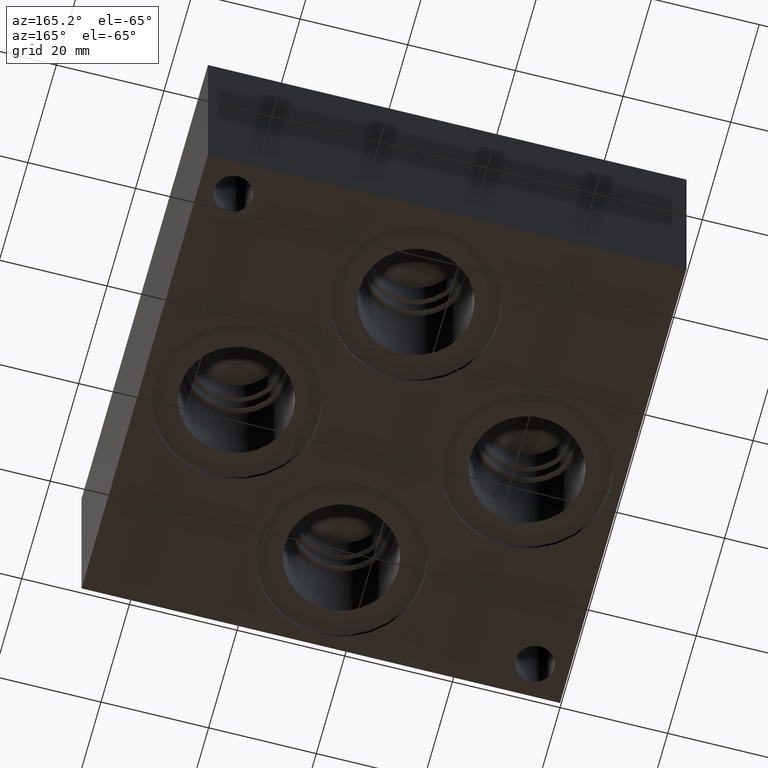
[diagram: clean part render]
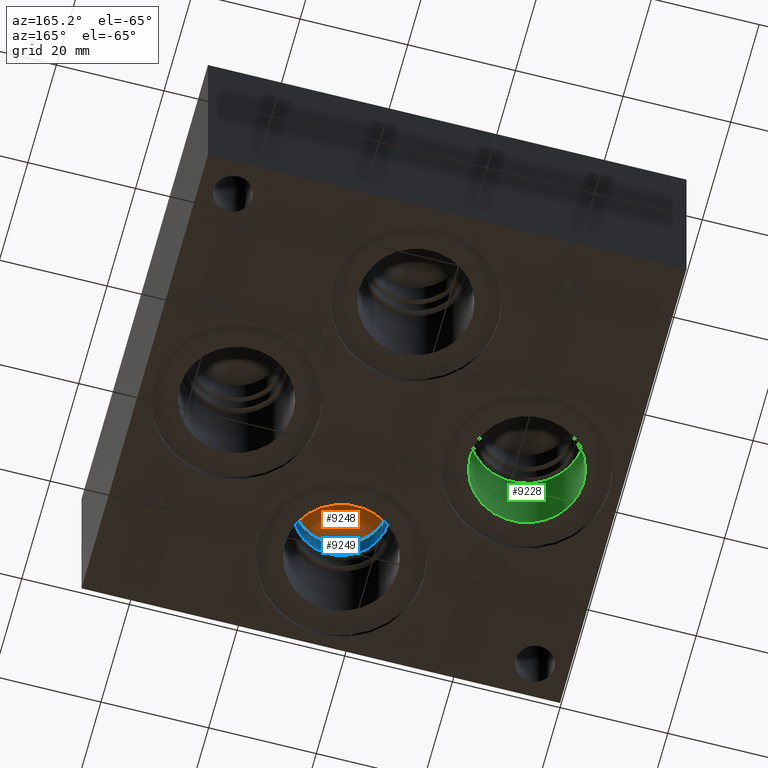
[diagram: same view with three faces highlighted in distinct colors, each labeled with its STEP entity id]
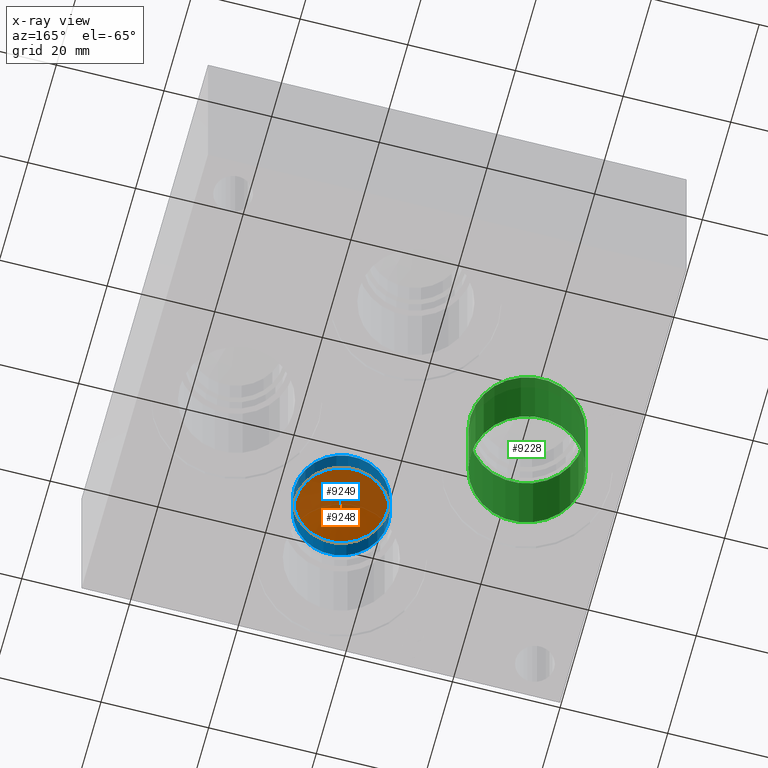
[diagram: x-ray of the same camera — body ghosted, the three highlighted faces saturated]
A machine part, auxiliary view with three faces highlighted in distinct colors.
The next image is the same camera in x-ray (body ghosted, the three faces saturated) — at least one of them is partly hidden behind the body in this view.
Their STEP definitions:

[orange] entity #9248 — the highlighted conical surface has half-angle 60 deg.
#19=CONICAL_SURFACE('',#9644,4.3688,1.0471975511966);
#181=CIRCLE('',#9645,8.7376);
#182=CIRCLE('',#9646,8.7376);
#1098=FACE_OUTER_BOUND('',#1620,.T.);
#1620=EDGE_LOOP('',(#7911,#7912,#7913,#7914));
#2526=LINE('',#15758,#3404);
#3404=VECTOR('',#11277,4.3688);
#4230=VERTEX_POINT('',#15754);
#4231=VERTEX_POINT('',#15755);
#4232=VERTEX_POINT('',#15757);
#5483=EDGE_CURVE('',#4230,#4231,#181,.T.);
#5484=EDGE_CURVE('',#4231,#4232,#2526,.T.);
#5485=EDGE_CURVE('',#4231,#4230,#182,.T.);
#7911=ORIENTED_EDGE('',*,*,#5483,.T.);
#7912=ORIENTED_EDGE('',*,*,#5484,.T.);
#7913=ORIENTED_EDGE('',*,*,#5484,.F.);
#7914=ORIENTED_EDGE('',*,*,#5485,.T.);
#9248=ADVANCED_FACE('',(#1098),#19,.F.);
#9644=AXIS2_PLACEMENT_3D('',#15753,#11273,#11274);
#9645=AXIS2_PLACEMENT_3D('',#15756,#11275,#11276);
#9646=AXIS2_PLACEMENT_3D('',#15759,#11278,#11279);
#11273=DIRECTION('center_axis',(0.,0.,-1.));
#11274=DIRECTION('ref_axis',(1.,0.,0.));
#11275=DIRECTION('center_axis',(0.,0.,-1.));
#11276=DIRECTION('ref_axis',(1.,0.,0.));
#11277=DIRECTION('',(0.866025403784439,-1.06057523872491E-16,0.5));
#11278=DIRECTION('center_axis',(0.,0.,-1.));
#11279=DIRECTION('ref_axis',(1.,0.,0.));
#15753=CARTESIAN_POINT('Origin',(45.2374,17.4625,28.0001278560356));
#15754=CARTESIAN_POINT('',(53.975,17.4625,25.4778));
#15755=CARTESIAN_POINT('',(36.4998,17.4625,25.4778));
#15756=CARTESIAN_POINT('Origin',(45.2374,17.4625,25.4778));
#15757=CARTESIAN_POINT('',(45.2374,17.4625,30.5224557120713));
#15758=CARTESIAN_POINT('',(40.8686,17.4625,28.0001278560356));
#15759=CARTESIAN_POINT('Origin',(45.2374,17.4625,25.4778));

[blue] entity #9249 — the highlighted cylindrical surface (bore or boss wall) has radius 8.7376 mm, axis along (0, 0, -1).
#42=CYLINDRICAL_SURFACE('',#9647,8.7376);
#175=CIRCLE('',#9634,8.7376);
#181=CIRCLE('',#9645,8.7376);
#182=CIRCLE('',#9646,8.7376);
#1099=FACE_OUTER_BOUND('',#1621,.T.);
#1621=EDGE_LOOP('',(#7915,#7916,#7917,#7918,#7919));
#2527=LINE('',#15761,#3405);
#3405=VECTOR('',#11282,8.7376);
#4222=VERTEX_POINT('',#15730);
#4230=VERTEX_POINT('',#15754);
#4231=VERTEX_POINT('',#15755);
#5473=EDGE_CURVE('',#4222,#4222,#175,.T.);
#5483=EDGE_CURVE('',#4230,#4231,#181,.T.);
#5485=EDGE_CURVE('',#4231,#4230,#182,.T.);
#5486=EDGE_CURVE('',#4222,#4231,#2527,.T.);
#7915=ORIENTED_EDGE('',*,*,#5473,.T.);
#7916=ORIENTED_EDGE('',*,*,#5486,.T.);
#7917=ORIENTED_EDGE('',*,*,#5483,.F.);
#7918=ORIENTED_EDGE('',*,*,#5485,.F.);
#7919=ORIENTED_EDGE('',*,*,#5486,.F.);
#9249=ADVANCED_FACE('',(#1099),#42,.F.);
#9634=AXIS2_PLACEMENT_3D('',#15732,#11249,#11250);
#9645=AXIS2_PLACEMENT_3D('',#15756,#11275,#11276);
#9646=AXIS2_PLACEMENT_3D('',#15759,#11278,#11279);
#9647=AXIS2_PLACEMENT_3D('',#15760,#11280,#11281);
#11249=DIRECTION('center_axis',(0.,0.,-1.));
#11250=DIRECTION('ref_axis',(1.,0.,0.));
#11275=DIRECTION('center_axis',(0.,0.,-1.));
#11276=DIRECTION('ref_axis',(1.,0.,0.));
#11278=DIRECTION('center_axis',(0.,0.,-1.));
#11279=DIRECTION('ref_axis',(1.,0.,0.));
#11280=DIRECTION('center_axis',(0.,0.,-1.));
#11281=DIRECTION('ref_axis',(1.,0.,0.));
#11282=DIRECTION('',(0.,0.,1.));
#15730=CARTESIAN_POINT('',(36.4998,17.4625,20.4331438620134));
#15732=CARTESIAN_POINT('Origin',(45.2374,17.4625,20.4331438620134));
#15754=CARTESIAN_POINT('',(53.975,17.4625,25.4778));
#15755=CARTESIAN_POINT('',(36.4998,17.4625,25.4778));
#15756=CARTESIAN_POINT('Origin',(45.2374,17.4625,25.4778));
#15759=CARTESIAN_POINT('Origin',(45.2374,17.4625,25.4778));
#15760=CARTESIAN_POINT('Origin',(45.2374,17.4625,12.7389));
#15761=CARTESIAN_POINT('',(36.4998,17.4625,12.7389));

[green] entity #9228 — the highlighted cylindrical surface (bore or boss wall) has radius 10.5283 mm, axis along (0, 0, 1).
#32=CYLINDRICAL_SURFACE('',#9590,10.5283);
#145=CIRCLE('',#9588,10.5283);
#146=CIRCLE('',#9589,10.5283);
#147=CIRCLE('',#9591,10.5283);
#148=CIRCLE('',#9592,10.5283);
#1078=FACE_OUTER_BOUND('',#1595,.T.);
#1595=EDGE_LOOP('',(#7810,#7811,#7812,#7813,#7814,#7815));
#2511=LINE('',#15650,#3389);
#3389=VECTOR('',#11152,10.5283);
#4192=VERTEX_POINT('',#15644);
#4193=VERTEX_POINT('',#15645);
#4194=VERTEX_POINT('',#15649);
#4195=VERTEX_POINT('',#15651);
#5432=EDGE_CURVE('',#4192,#4193,#145,.T.);
#5433=EDGE_CURVE('',#4193,#4192,#146,.T.);
#5434=EDGE_CURVE('',#4193,#4194,#2511,.T.);
#5435=EDGE_CURVE('',#4194,#4195,#147,.T.);
#5436=EDGE_CURVE('',#4195,#4194,#148,.T.);
#7810=ORIENTED_EDGE('',*,*,#5432,.F.);
#7811=ORIENTED_EDGE('',*,*,#5433,.F.);
#7812=ORIENTED_EDGE('',*,*,#5434,.T.);
#7813=ORIENTED_EDGE('',*,*,#5435,.T.);
#7814=ORIENTED_EDGE('',*,*,#5436,.T.);
#7815=ORIENTED_EDGE('',*,*,#5434,.F.);
#9228=ADVANCED_FACE('',(#1078),#32,.F.);
#9588=AXIS2_PLACEMENT_3D('',#15646,#11146,#11147);
#9589=AXIS2_PLACEMENT_3D('',#15647,#11148,#11149);
#9590=AXIS2_PLACEMENT_3D('',#15648,#11150,#11151);
#9591=AXIS2_PLACEMENT_3D('',#15652,#11153,#11154);
#9592=AXIS2_PLACEMENT_3D('',#15653,#11155,#11156);
#11146=DIRECTION('center_axis',(0.,0.,1.));
#11147=DIRECTION('ref_axis',(1.,0.,0.));
#11148=DIRECTION('center_axis',(0.,0.,1.));
#11149=DIRECTION('ref_axis',(1.,0.,0.));
#11150=DIRECTION('center_axis',(0.,0.,1.));
#11151=DIRECTION('ref_axis',(1.,0.,0.));
#11152=DIRECTION('',(0.,0.,1.));
#11153=DIRECTION('center_axis',(0.,0.,1.));
#11154=DIRECTION('ref_axis',(1.,0.,0.));
#11155=DIRECTION('center_axis',(0.,0.,1.));
#11156=DIRECTION('ref_axis',(1.,0.,0.));
#15644=CARTESIAN_POINT('',(28.0035,42.8752,0.7874));
#15645=CARTESIAN_POINT('',(6.9469,42.8752,0.7874));
#15646=CARTESIAN_POINT('Origin',(17.4752,42.8752,0.7874));
#15647=CARTESIAN_POINT('Origin',(17.4752,42.8752,0.7874));
#15648=CARTESIAN_POINT('Origin',(17.4752,42.8752,9.0805));
#15649=CARTESIAN_POINT('',(6.9469,42.8752,17.3736));
#15650=CARTESIAN_POINT('',(6.9469,42.8752,9.0805));
#15651=CARTESIAN_POINT('',(28.0035,42.8752,17.3736));
#15652=CARTESIAN_POINT('Origin',(17.4752,42.8752,17.3736));
#15653=CARTESIAN_POINT('Origin',(17.4752,42.8752,17.3736));